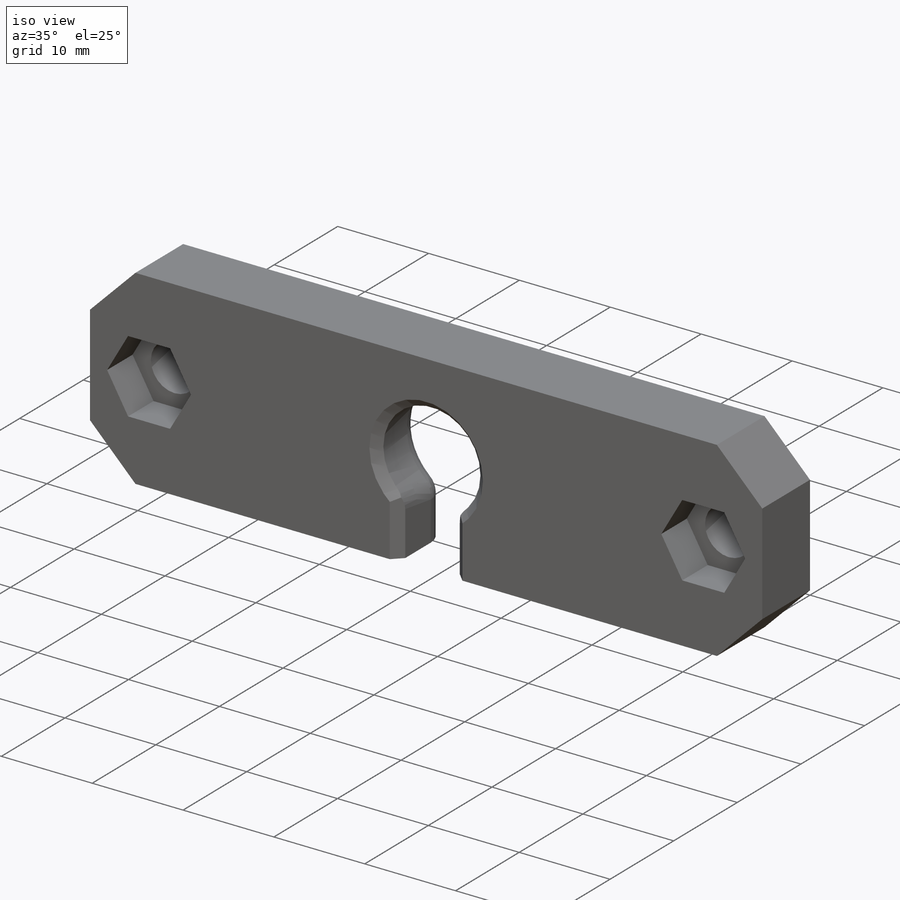
[diagram: iso view]
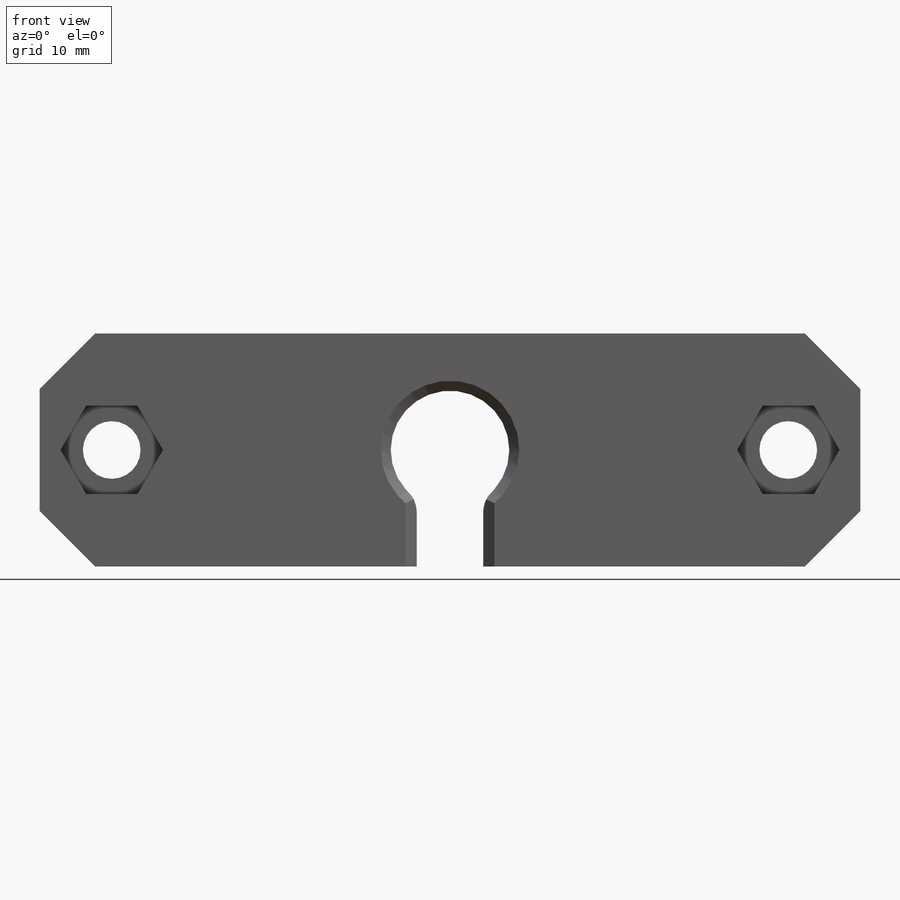
[diagram: front view]
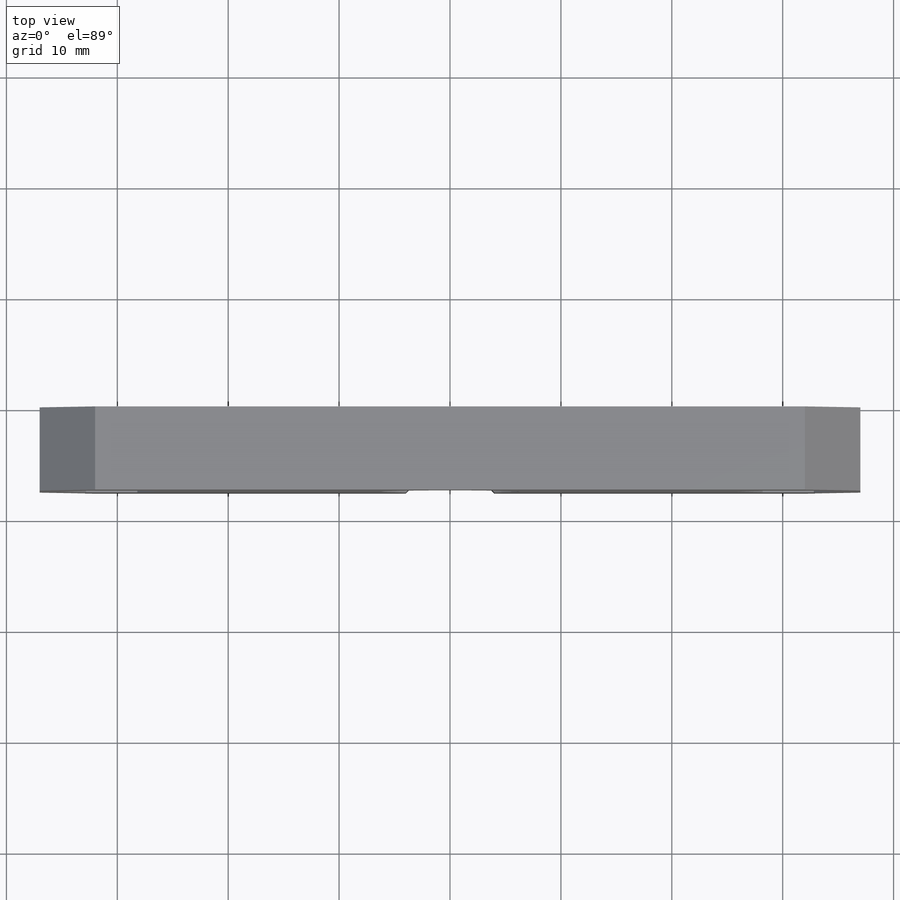
[diagram: top view]
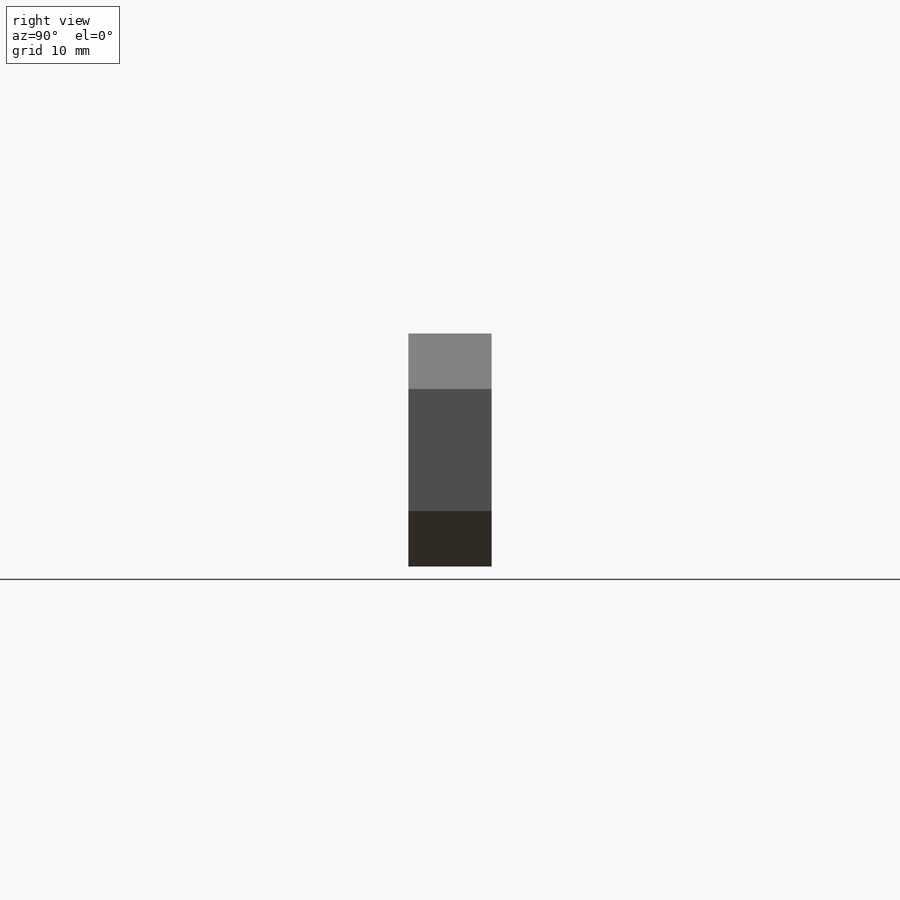
[diagram: right view]
SOLIDWORKS PART (.sldprt)
format: sldprt  version: not decoded by parser v0  size: 271,872 bytes
history: native  units: mm
features: sketch x5, cut_extrude x4, chamfer x3, fillet x2, material x1, extrude x1 (+13 scaffold rows collapsed)
feature tree (29):
  scaffold x13  (default folders/planes/origin — collapsed)
  material  "Material <not specified>"
  sketch  "Sketch1"  dims[D1=74.0mm D2=21.0mm]
  extrude  "Boss-Extrude1"  Depth=7.5mm
  sketch  "Sketch2"  dims[D1=10.5mm]
  cut_extrude  "Cut-Extrude1"  Depth=7.5mm
  fillet  "Fillet2"  Radius=2.5mm
  chamfer  "Chamfer1"  Distance=1mm Angle=45deg
  sketch  "Sketch3"  dims[D1=6.0mm]
  cut_extrude  "Cut-Extrude3"  [1 undecoded]
  chamfer  "Chamfer2"  Distance=1mm Angle=45deg
  fillet  "Fillet3"  Radius=2.5mm
  sketch  "Sketch4"  dims[D2=5.2mm D3=5.2mm D1=6.5mm]
  cut_extrude  "Cut-Extrude4"  [1 undecoded]
  chamfer  "Chamfer3"  Distance=5mm Angle=45deg
  sketch  "Sketch5"  dims[D1=8.0mm D2=8.0mm]
  cut_extrude  "Cut-Extrude6"  Depth=4mm
decode coverage: 13 of 15 modeling features carry decoded parameters
note: 2 parameter values undecoded
note: suppression state not decoded; provenance and decode notes live in map.json
